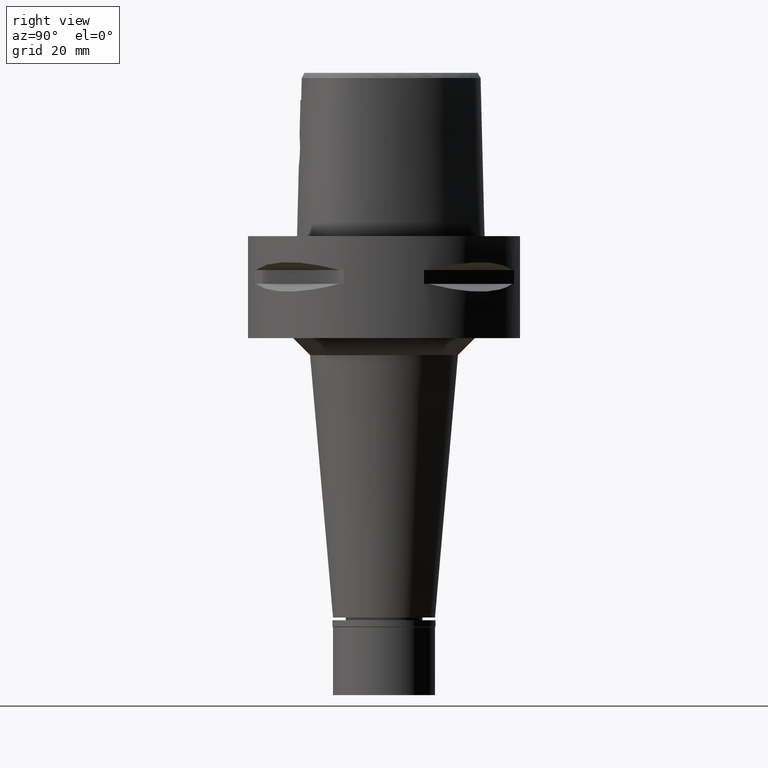
[diagram: clean part render]
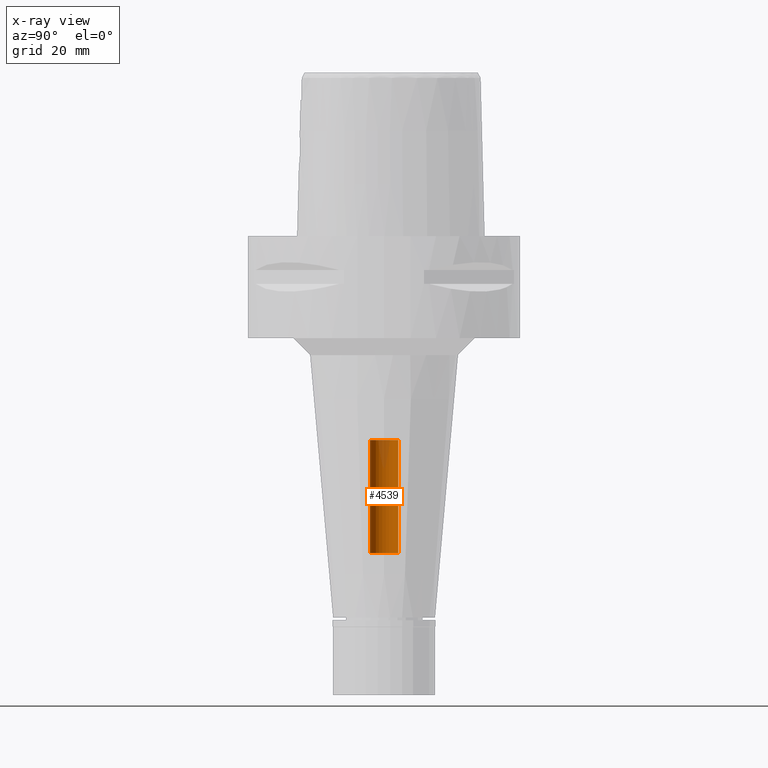
[diagram: x-ray — body ghosted, one internal face saturated and labeled with its STEP entity id]
A machine part, right view, then the same camera in x-ray: the body is ghosted and one INTERNAL B-rep face — a face not visible from any outside direction — is saturated and labeled: STEP entity #4539.
In plain terms, the highlighted cylindrical surface (edge-blend (fillet) strip) has radius 4.2 mm, axis along (0, 0, -1).
Its self-contained STEP definition (entity closure, byte-faithful):
#195 = VERTEX_POINT ( 'NONE', #322 ) ;
#254 = EDGE_CURVE ( 'NONE', #195, #4240, #1843, .T. ) ;
#322 = CARTESIAN_POINT ( 'NONE',  ( 0.0000000000000000000, 4.200000000000000178, -93.29999999999999716 ) ) ;
#474 = VERTEX_POINT ( 'NONE', #4877 ) ;
#706 = VERTEX_POINT ( 'NONE', #1884 ) ;
#832 = EDGE_LOOP ( 'NONE', ( #4664, #1818, #3928, #4263 ) ) ;
#842 = VECTOR ( 'NONE', #3352, 1000.000000000000000 ) ;
#946 = CYLINDRICAL_SURFACE ( 'NONE', #3018, 4.200000000000000178 ) ;
#1287 = LINE ( 'NONE', #4036, #842 ) ;
#1366 = EDGE_CURVE ( 'NONE', #474, #706, #1287, .T. ) ;
#1513 = DIRECTION ( 'NONE',  ( 0.0000000000000000000, -1.000000000000000000, 0.0000000000000000000 ) ) ;
#1647 = CARTESIAN_POINT ( 'NONE',  ( 0.0000000000000000000, 4.200000000000000178, -60.00000000000000000 ) ) ;
#1818 = ORIENTED_EDGE ( 'NONE', *, *, #1366, .F. ) ;
#1843 = LINE ( 'NONE', #3435, #4063 ) ;
#1884 = CARTESIAN_POINT ( 'NONE',  ( 0.0000000000000000000, -4.200000000000000178, -60.00000000000000000 ) ) ;
#2012 = AXIS2_PLACEMENT_3D ( 'NONE', #4891, #2506, #3744 ) ;
#2054 = EDGE_CURVE ( 'NONE', #474, #195, #2918, .T. ) ;
#2134 = CARTESIAN_POINT ( 'NONE',  ( 0.0000000000000000000, 1.303207891312999846E-14, 6.415000000000000036 ) ) ;
#2298 = DIRECTION ( 'NONE',  ( 0.0000000000000000000, -1.000000000000000000, 0.0000000000000000000 ) ) ;
#2501 = EDGE_CURVE ( 'NONE', #4240, #706, #4252, .T. ) ;
#2506 = DIRECTION ( 'NONE',  ( 0.0000000000000000000, 0.0000000000000000000, 1.000000000000000000 ) ) ;
#2756 = AXIS2_PLACEMENT_3D ( 'NONE', #3484, #5072, #1513 ) ;
#2918 = CIRCLE ( 'NONE', #2756, 4.200000000000000178 ) ;
#3018 = AXIS2_PLACEMENT_3D ( 'NONE', #2134, #5026, #2298 ) ;
#3352 = DIRECTION ( 'NONE',  ( 0.0000000000000000000, 0.0000000000000000000, 1.000000000000000000 ) ) ;
#3435 = CARTESIAN_POINT ( 'NONE',  ( 0.0000000000000000000, 4.200000000000000178, -93.29999999999999716 ) ) ;
#3484 = CARTESIAN_POINT ( 'NONE',  ( 0.0000000000000000000, 1.303207891312999846E-14, -93.29999999999999716 ) ) ;
#3744 = DIRECTION ( 'NONE',  ( 0.0000000000000000000, 1.000000000000000000, 0.0000000000000000000 ) ) ;
#3928 = ORIENTED_EDGE ( 'NONE', *, *, #2054, .T. ) ;
#4036 = CARTESIAN_POINT ( 'NONE',  ( 0.0000000000000000000, -4.200000000000000178, -93.29999999999999716 ) ) ;
#4063 = VECTOR ( 'NONE', #5022, 1000.000000000000000 ) ;
#4240 = VERTEX_POINT ( 'NONE', #1647 ) ;
#4252 = CIRCLE ( 'NONE', #2012, 4.200000000000000178 ) ;
#4263 = ORIENTED_EDGE ( 'NONE', *, *, #254, .T. ) ;
#4511 = FACE_OUTER_BOUND ( 'NONE', #832, .T. ) ;
#4539 = ADVANCED_FACE ( 'NONE', ( #4511 ), #946, .F. ) ;
#4664 = ORIENTED_EDGE ( 'NONE', *, *, #2501, .T. ) ;
#4877 = CARTESIAN_POINT ( 'NONE',  ( 0.0000000000000000000, -4.200000000000000178, -93.29999999999999716 ) ) ;
#4891 = CARTESIAN_POINT ( 'NONE',  ( 0.0000000000000000000, 1.303207891312999846E-14, -60.00000000000000000 ) ) ;
#5022 = DIRECTION ( 'NONE',  ( 0.0000000000000000000, 0.0000000000000000000, 1.000000000000000000 ) ) ;
#5026 = DIRECTION ( 'NONE',  ( 0.0000000000000000000, 0.0000000000000000000, -1.000000000000000000 ) ) ;
#5072 = DIRECTION ( 'NONE',  ( 0.0000000000000000000, 0.0000000000000000000, -1.000000000000000000 ) ) ;